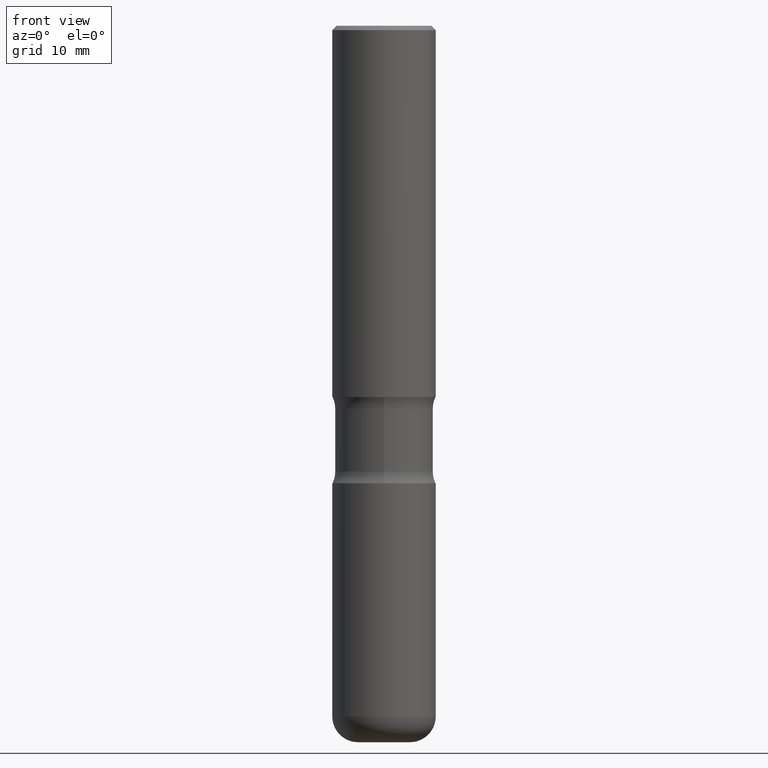
[diagram: clean part render]
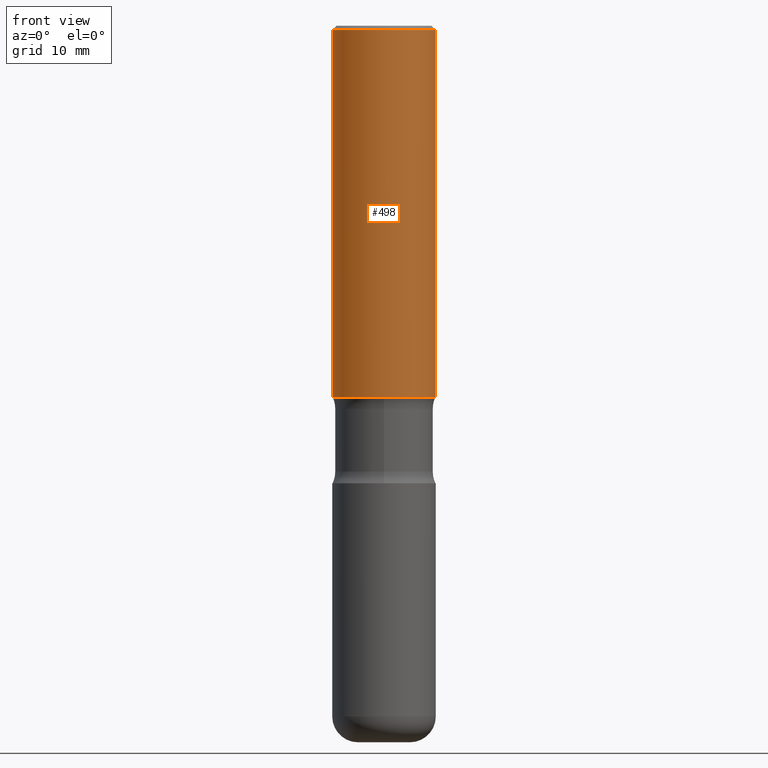
[diagram: same view with one face highlighted and labeled with its STEP entity id]
A machine part, front view. The second image highlights one B-rep face of the part: STEP entity #498.
In plain terms, the highlighted cylindrical surface (partial cylindrical patch) has radius 5.9995 mm, axis along (-0, 0, 1).
Its self-contained STEP definition (entity closure, byte-faithful):
#5 = DIRECTION ( 'NONE',  ( 1.000000000000000000, -6.982962677686267499E-15, 0.000000000000000000 ) ) ;
#11 = DIRECTION ( 'NONE',  ( 1.000000000000000000, -6.982962677686266711E-15, 4.876176775795935793E-29 ) ) ;
#27 = DIRECTION ( 'NONE',  ( -2.445468806185136597E-29, 3.491481338843145583E-15, 1.000000000000000000 ) ) ;
#29 = ORIENTED_EDGE ( 'NONE', *, *, #132, .T. ) ;
#38 = CARTESIAN_POINT ( 'NONE',  ( 0.2362000000000002431, -1.649375784469497906E-15, 1.151752954443001209E-29 ) ) ;
#50 = CARTESIAN_POINT ( 'NONE',  ( 4.139934141990816676E-29, -5.910728758527559497E-15, -1.692899999999999627 ) ) ;
#95 = VECTOR ( 'NONE', #551, 39.37007874015748143 ) ;
#102 = CYLINDRICAL_SURFACE ( 'NONE', #207, 0.2362000000000002431 ) ;
#132 = EDGE_CURVE ( 'NONE', #321, #198, #426, .T. ) ;
#142 = DIRECTION ( 'NONE',  ( -2.445468806185136877E-29, 3.491481338843145188E-15, 1.000000000000000000 ) ) ;
#152 = FACE_OUTER_BOUND ( 'NONE', #232, .T. ) ;
#157 = AXIS2_PLACEMENT_3D ( 'NONE', #50, #351, #5 ) ;
#167 = CARTESIAN_POINT ( 'NONE',  ( 0.2362000000000004374, -7.560104542997059178E-15, -1.692899999999999627 ) ) ;
#185 = ORIENTED_EDGE ( 'NONE', *, *, #435, .F. ) ;
#195 = CIRCLE ( 'NONE', #419, 0.2362000000000000210 ) ;
#198 = VERTEX_POINT ( 'NONE', #289 ) ;
#207 = AXIS2_PLACEMENT_3D ( 'NONE', #231, #27, #11 ) ;
#231 = CARTESIAN_POINT ( 'NONE',  ( 0.000000000000000000, 0.000000000000000000, 0.000000000000000000 ) ) ;
#232 = EDGE_LOOP ( 'NONE', ( #185, #431, #29, #454 ) ) ;
#289 = CARTESIAN_POINT ( 'NONE',  ( 0.2362000000000000210, -1.690279253850499166E-15, -0.02000000000000006981 ) ) ;
#318 = LINE ( 'NONE', #365, #373 ) ;
#321 = VERTEX_POINT ( 'NONE', #167 ) ;
#334 = EDGE_CURVE ( 'NONE', #356, #321, #409, .T. ) ;
#344 = CARTESIAN_POINT ( 'NONE',  ( 4.890937612370289799E-31, -6.982962677686315028E-17, -0.02000000000000006981 ) ) ;
#351 = DIRECTION ( 'NONE',  ( -2.445468806185136597E-29, 3.491481338843145583E-15, 1.000000000000000000 ) ) ;
#356 = VERTEX_POINT ( 'NONE', #401 ) ;
#359 = DIRECTION ( 'NONE',  ( 1.000000000000000000, -6.982962677686267499E-15, 0.000000000000000000 ) ) ;
#365 = CARTESIAN_POINT ( 'NONE',  ( -0.2362000000000002431, 1.678301941865358366E-15, -1.161852468318209878E-29 ) ) ;
#373 = VECTOR ( 'NONE', #142, 39.37007874015748143 ) ;
#400 = DIRECTION ( 'NONE',  ( -2.445468806185136597E-29, 3.491481338843145583E-15, 1.000000000000000000 ) ) ;
#401 = CARTESIAN_POINT ( 'NONE',  ( -0.2362000000000004374, -1.311977250786849481E-15, -1.692899999999999627 ) ) ;
#408 = CARTESIAN_POINT ( 'NONE',  ( -0.2362000000000000210, 1.579546157692633424E-15, -0.02000000000000006981 ) ) ;
#409 = CIRCLE ( 'NONE', #157, 0.2362000000000004374 ) ;
#419 = AXIS2_PLACEMENT_3D ( 'NONE', #344, #400, #359 ) ;
#426 = LINE ( 'NONE', #38, #95 ) ;
#431 = ORIENTED_EDGE ( 'NONE', *, *, #334, .T. ) ;
#435 = EDGE_CURVE ( 'NONE', #356, #438, #318, .T. ) ;
#438 = VERTEX_POINT ( 'NONE', #408 ) ;
#454 = ORIENTED_EDGE ( 'NONE', *, *, #536, .F. ) ;
#498 = ADVANCED_FACE ( 'NONE', ( #152 ), #102, .T. ) ;
#536 = EDGE_CURVE ( 'NONE', #438, #198, #195, .T. ) ;
#551 = DIRECTION ( 'NONE',  ( -2.445468806185136877E-29, 3.491481338843145188E-15, 1.000000000000000000 ) ) ;